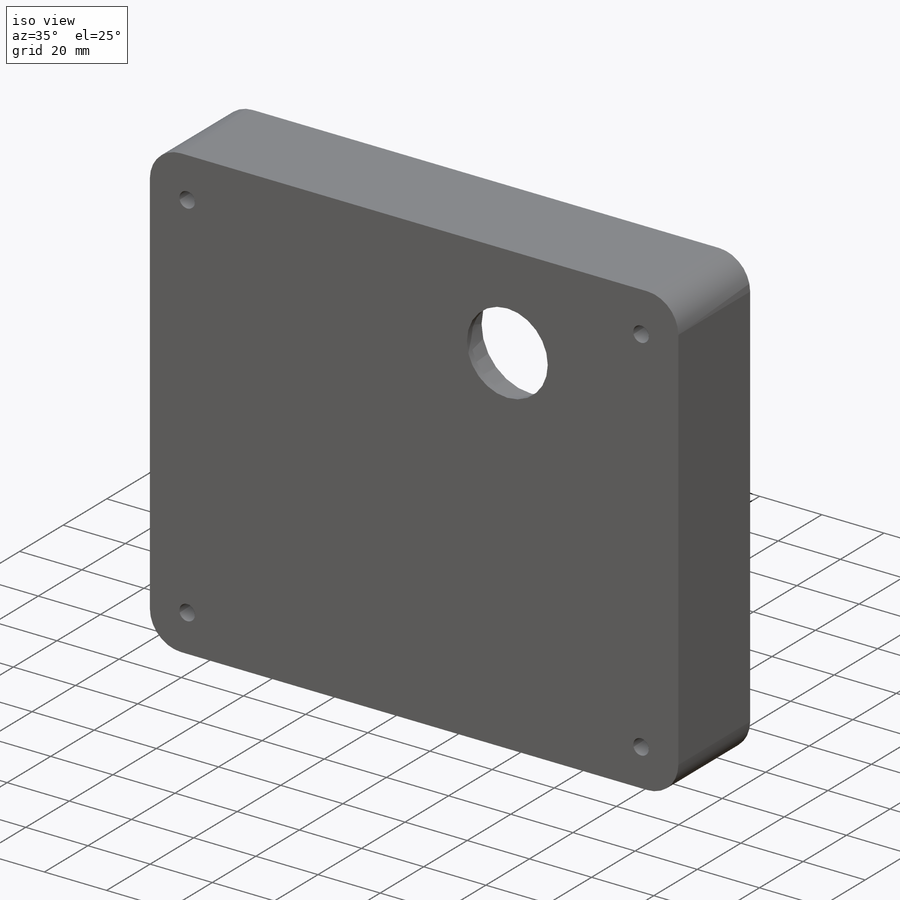
[diagram: iso view]
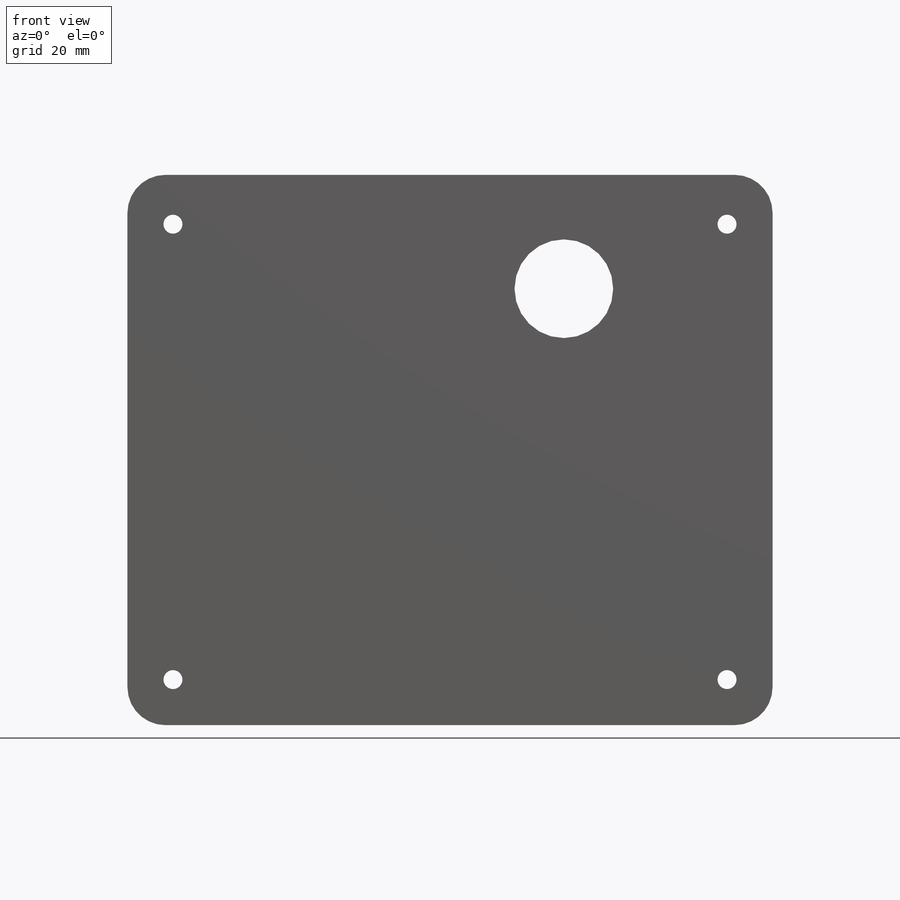
[diagram: front view]
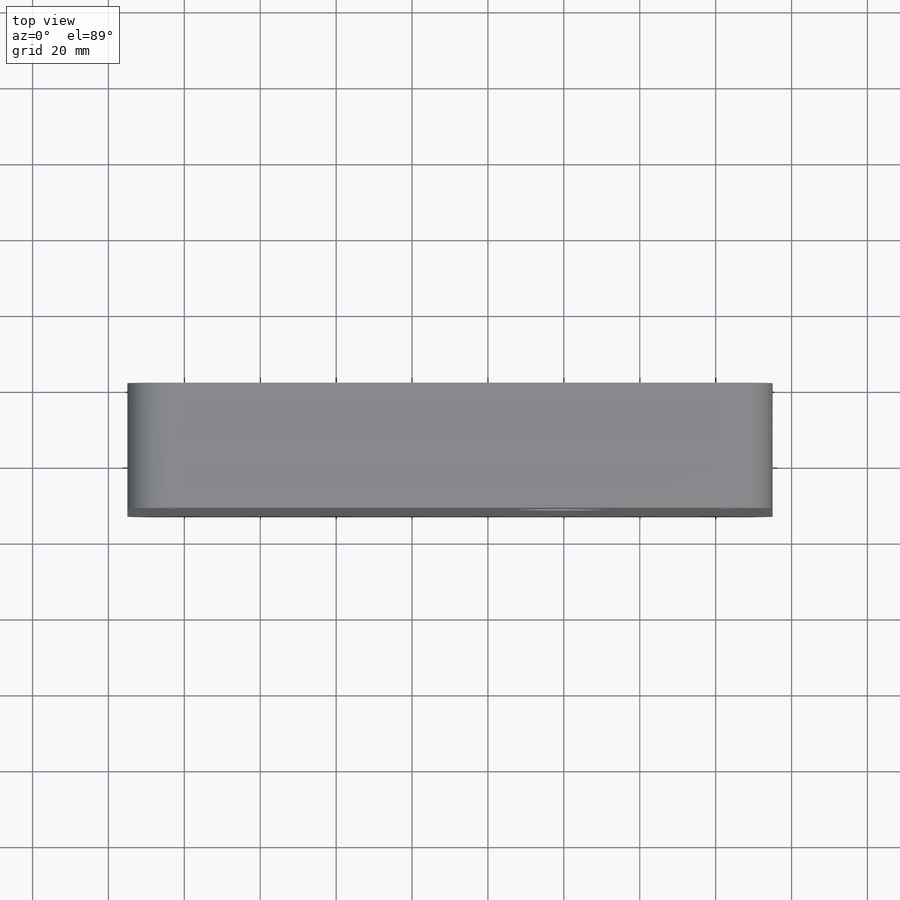
[diagram: top view]
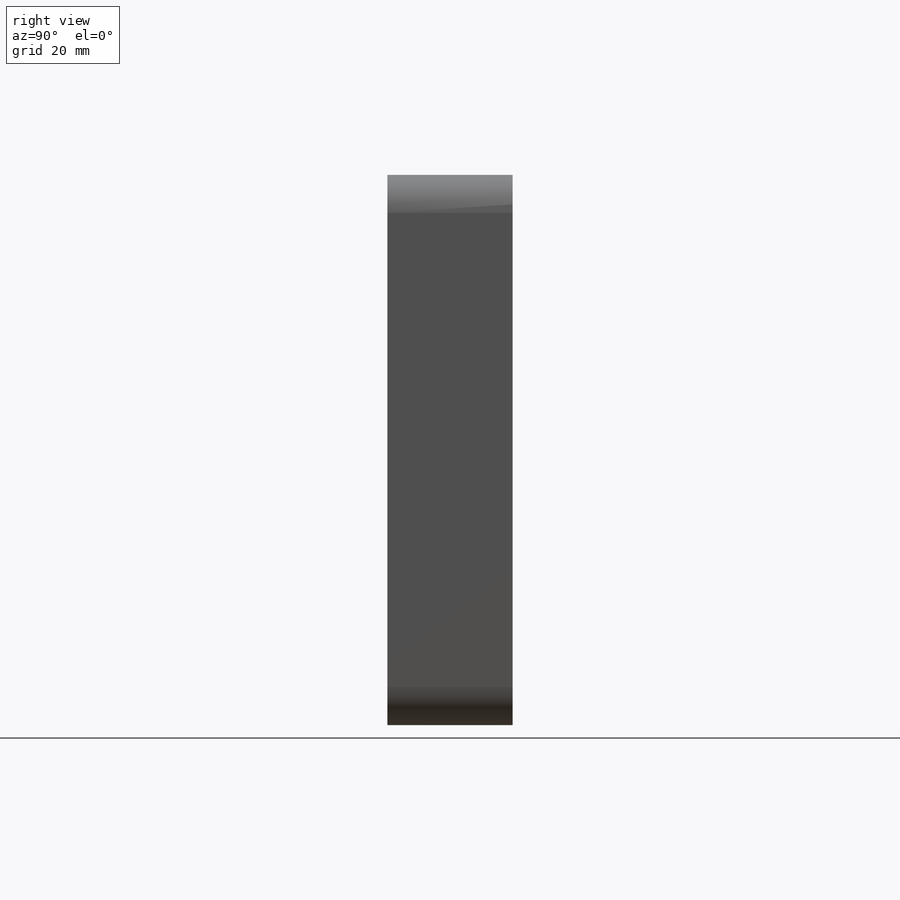
[diagram: right view]
SOLIDWORKS PART (.sldprt)
format: sldprt  version: not decoded by parser v0  size: 390,656 bytes
history: native  units: mm
features: sketch x8, cut_extrude x5, thread x4, fillet x2, material x1, extrude x1, hole x1 (+11 scaffold rows collapsed)
feature tree (33):
  scaffold x11  (default folders/planes/origin — collapsed)
  material  "6063-T1"
  sketch  "Sketch1"  dims[D2=100.0mm D3=50.0mm D9=10.0mm D1=60.0mm D4=60.0mm D5=55.0mm D6=90.0mm D7=55.0mm D8=115.0mm]
  extrude  "Boss-Extrude1"  Depth=33mm
  sketch  "Sketch2"  dims[D1=6.0mm D2=6.0mm]
  cut_extrude  "Cut-Extrude1"  Depth=22mm
  sketch  "Sketch3"  dims[D1=26.0mm D2=26.0mm D3=32.0mm D4=32.0mm]
  cut_extrude  "Cut-Extrude2"  Depth=8mm
  sketch  "Sketch4"  dims[D1=21.0mm D2=21.0mm]
  cut_extrude  "Cut-Extrude3"  Depth=1mm
  sketch  "Sketch5"
  cut_extrude  "Cut-Extrude4"  Depth=9mm
  sketch  "Sketch6"  dims[D1=26.0mm]
  cut_extrude  "Cut-Extrude5"  [1 undecoded]
  fillet  "Fillet1"  Radius=2mm
  fillet  "Fillet2"  Radius=0.2mm
  hole  "M6 Tapped Hole1"  Diameter=5mm Depth=33mm
  sketch  "Sketch8"  dims[D1=120.0mm D2=43.0mm D3=43.0mm D4=146.0mm]
  sketch  "Sketch7"  dims[hole-wizard template sketch: 60 standard entries collapsed; hole parameters kept: c18.Thru Tap Drill Depth=33.0mm]
  thread  "Hole Thread1"  Diameter=6mm  [1 undecoded]
  thread  "Hole Thread2"  Diameter=6mm  [1 undecoded]
  thread  "Hole Thread3"  Diameter=6mm  [1 undecoded]
  thread  "Hole Thread4"  Diameter=6mm  [1 undecoded]
decode coverage: 19 of 21 modeling features carry decoded parameters
note: ~ marks probable driven/reference dimensions
note: 5 parameter values undecoded
note: suppression state not decoded; provenance and decode notes live in map.json
